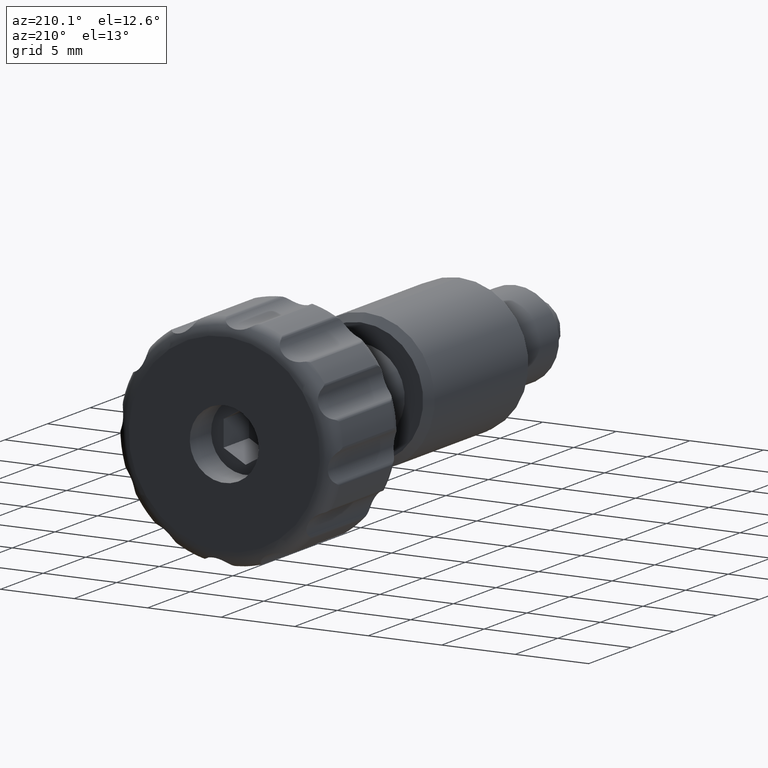
[diagram: clean part render]
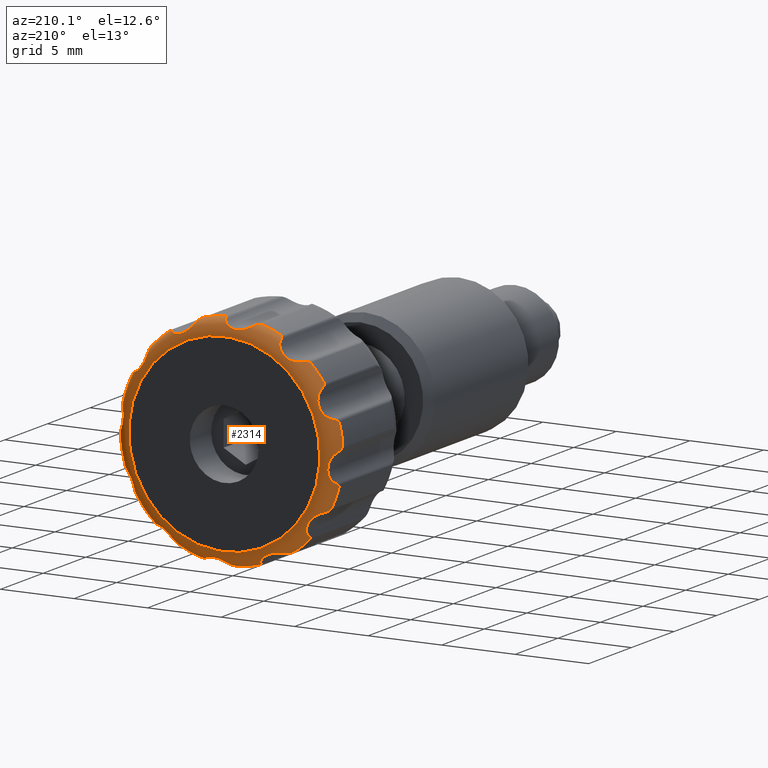
[diagram: same view with one face highlighted and labeled with its STEP entity id]
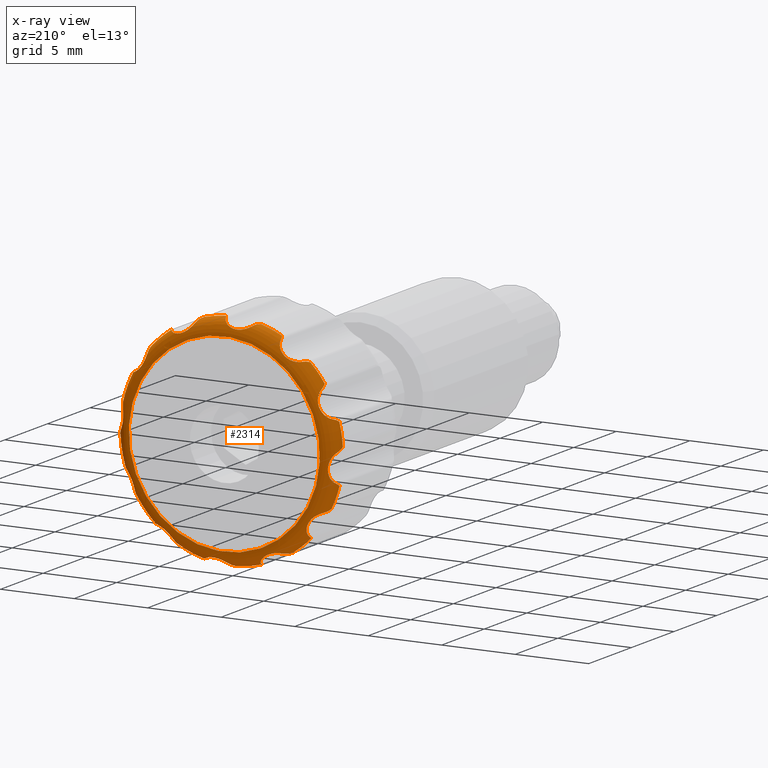
[diagram: x-ray of the same camera — body ghosted, the highlighted face saturated]
A machine part, auxiliary view. The second image highlights one B-rep face of the part: STEP entity #2314.
The next image is the same camera in x-ray: the body ghosted, the highlighted face saturated — about 0% of this face is hidden behind the body in this view.
In plain terms, the highlighted toroidal blend (fillet) surface has major radius 6.5 mm and minor (blend) radius 1 mm.
Its self-contained STEP definition (entity closure, byte-faithful):
#6 = CARTESIAN_POINT ( 'NONE',  ( -5.276409594814913895, 15.00066463725906196, 5.330056452585417048 ) ) ;
#12 = DIRECTION ( 'NONE',  ( 0.1636311210928112214, -4.625929269271425763E-16, 0.9865215943961438416 ) ) ;
#23 = CARTESIAN_POINT ( 'NONE',  ( -6.290628969198816201, 15.43210945243509613, 3.901237475284052625 ) ) ;
#31 = ORIENTED_EDGE ( 'NONE', *, *, #508, .T. ) ;
#42 = CARTESIAN_POINT ( 'NONE',  ( 1.661387541385323852, 15.43210945243703236, -7.213283448194492742 ) ) ;
#44 = CARTESIAN_POINT ( 'NONE',  ( 7.398463230750251363, 15.43210945243500909, -0.2332562751925282563 ) ) ;
#48 = ORIENTED_EDGE ( 'NONE', *, *, #714, .T. ) ;
#55 = CARTESIAN_POINT ( 'NONE',  ( 6.523885244391032678, 15.43210945243504284, 3.497225755466382147 ) ) ;
#57 = CARTESIAN_POINT ( 'NONE',  ( -6.523885244391386173, 15.43210945243505350, -3.497225755466302211 ) ) ;
#59 = CARTESIAN_POINT ( 'NONE',  ( 5.498648544441020469, 15.84309984348018752, 4.413503433307501389 ) ) ;
#61 = ORIENTED_EDGE ( 'NONE', *, *, #1638, .F. ) ;
#65 = CARTESIAN_POINT ( 'NONE',  ( -6.968721042622203932, 15.84309984348009337, -1.072881820713407430 ) ) ;
#67 = CARTESIAN_POINT ( 'NONE',  ( -7.213025690911554655, 15.14656376009504513, 2.056431933795726863 ) ) ;
#70 = EDGE_CURVE ( 'NONE', #2378, #284, #2099, .T. ) ;
#71 = ORIENTED_EDGE ( 'NONE', *, *, #2298, .F. ) ;
#74 = CARTESIAN_POINT ( 'NONE',  ( 6.985445753422791171, 15.86677829977077891, 0.4888876875020571333 ) ) ;
#77 = CARTESIAN_POINT ( 'NONE',  ( -0.4638282471322250355, 15.00066463725909571, -7.485643817145100520 ) ) ;
#80 = ORIENTED_EDGE ( 'NONE', *, *, #1782, .F. ) ;
#83 = CARTESIAN_POINT ( 'NONE',  ( 1.072881820713518009, 15.84309984348018752, -6.968721042622052941 ) ) ;
#85 = CIRCLE ( 'NONE', #1650, 7.500000000000096811 ) ;
#86 = CARTESIAN_POINT ( 'NONE',  ( -7.274879453377575800, 15.14656376009400596, -1.825590549633256066 ) ) ;
#88 = CARTESIAN_POINT ( 'NONE',  ( 6.406717666651647214, 15.58442692549904329, 3.531709327202635862 ) ) ;
#95 = ORIENTED_EDGE ( 'NONE', *, *, #2531, .T. ) ;
#96 = DIRECTION ( 'NONE',  ( -3.260545687903909196E-16, -1.000000000000000000, -3.253773888833970700E-16 ) ) ;
#97 = CARTESIAN_POINT ( 'NONE',  ( 4.076935432798023839, 15.14570152745332088, 6.295646988387678888 ) ) ;
#114 = CARTESIAN_POINT ( 'NONE',  ( 2.056431933794646838, 15.14656376009553362, 7.213025690911712751 ) ) ;
#116 = AXIS2_PLACEMENT_3D ( 'NONE', #2200, #1193, #1574 ) ;
#117 = CARTESIAN_POINT ( 'NONE',  ( 1.904476523588883419, 15.00066463725904775, -7.254169088951477384 ) ) ;
#129 = CARTESIAN_POINT ( 'NONE',  ( 5.330056452585346882, 15.00066463725898558, 5.276409594814825965 ) ) ;
#131 = CARTESIAN_POINT ( 'NONE',  ( 7.274879453377174343, 15.14656376009432392, 1.825590549633888449 ) ) ;
#134 = VERTEX_POINT ( 'NONE', #614 ) ;
#137 = EDGE_CURVE ( 'NONE', #391, #470, #1026, .T. ) ;
#139 = VERTEX_POINT ( 'NONE', #223 ) ;
#143 = CARTESIAN_POINT ( 'NONE',  ( -5.416192940141627332, 15.43210945243703947, -5.045445540467934364 ) ) ;
#156 = CARTESIAN_POINT ( 'NONE',  ( -0.2983484731699010961, 15.84355434146787722, 7.043879788591716817 ) ) ;
#159 = CARTESIAN_POINT ( 'NONE',  ( 7.183431533296480431, 15.51386028369654468, 1.616803499841392711 ) ) ;
#164 = CARTESIAN_POINT ( 'NONE',  ( 5.218447519581363103, 15.14656376009516592, -5.387435141276106343 ) ) ;
#169 = VERTEX_POINT ( 'NONE', #1267 ) ;
#170 = EDGE_CURVE ( 'NONE', #645, #2070, #2034, .T. ) ;
#173 = B_SPLINE_CURVE_WITH_KNOTS ( 'NONE', 3,
 ( #692, #1070, #220, #2492 ),
 .UNSPECIFIED., .F., .F.,
 ( 4, 4 ),
 ( 6.753317704724355309E-16, 0.0004984791478706677732 ),
 .UNSPECIFIED. ) ;
#180 = EDGE_CURVE ( 'NONE', #2317, #2317, #1389, .T. ) ;
#184 = CARTESIAN_POINT ( 'NONE',  ( -3.849776719508273715, 15.51327117412738232, -6.276869519805928554 ) ) ;
#186 = CARTESIAN_POINT ( 'NONE',  ( 0.2984443754994117182, 15.29172059110263859, 7.463581818770409271 ) ) ;
#189 = CARTESIAN_POINT ( 'NONE',  ( -7.398463230750547126, 15.43210945243508547, 0.2332562751925580657 ) ) ;
#191 = CARTESIAN_POINT ( 'NONE',  ( -4.991908670438493623, 15.51386028369643100, 5.412632444260299103 ) ) ;
#192 = DIRECTION ( 'NONE',  ( 0.1636311210928883542, -4.625929269271425763E-16, 0.9865215943961310741 ) ) ;
#197 = CARTESIAN_POINT ( 'NONE',  ( 2.167837907726568591, 15.43210945243693466, 7.077580481526962508 ) ) ;
#198 = CARTESIAN_POINT ( 'NONE',  ( -6.250843585763703913, 15.00066463725909571, 4.144508953581986788 ) ) ;
#200 = EDGE_CURVE ( 'NONE', #211, #1772, #449, .T. ) ;
#206 = CARTESIAN_POINT ( 'NONE',  ( 6.523885244391032678, 15.43210945243504284, 3.497225755466382147 ) ) ;
#210 = EDGE_CURVE ( 'NONE', #139, #1002, #2327, .T. ) ;
#211 = VERTEX_POINT ( 'NONE', #280 ) ;
#218 = B_SPLINE_CURVE_WITH_KNOTS ( 'NONE', 3,
 ( #497, #1720, #1320, #1926 ),
 .UNSPECIFIED., .F., .F.,
 ( 4, 4 ),
 ( 6.510104561652054582E-16, 0.0004984791478706852288 ),
 .UNSPECIFIED. ) ;
#220 = CARTESIAN_POINT ( 'NONE',  ( 6.295646988388402754, 15.14570152745257836, -4.076935432796839009 ) ) ;
#221 = DIRECTION ( 'NONE',  ( -3.260545687903909196E-16, -1.000000000000000000, -3.253773888833970700E-16 ) ) ;
#223 = CARTESIAN_POINT ( 'NONE',  ( -7.254169088951682554, 15.00066463725908683, -1.904476523588947146 ) ) ;
#229 = EDGE_CURVE ( 'NONE', #1249, #586, #1279, .T. ) ;
#230 = CARTESIAN_POINT ( 'NONE',  ( -7.213283448194684588, 15.43210945243706966, -1.661387541385329181 ) ) ;
#231 = CIRCLE ( 'NONE', #1936, 7.500000000000096811 ) ;
#237 = CARTESIAN_POINT ( 'NONE',  ( -0.01993354387748488832, 15.69991370668020281, -7.219067963954438838 ) ) ;
#241 = ORIENTED_EDGE ( 'NONE', *, *, #70, .T. ) ;
#242 = DIRECTION ( 'NONE',  ( -3.260545687903909196E-16, -1.000000000000000000, -3.253773888833970700E-16 ) ) ;
#246 = DIRECTION ( 'NONE',  ( -3.260545687903909196E-16, -1.000000000000000000, -3.253773888833970700E-16 ) ) ;
#248 = EDGE_CURVE ( 'NONE', #1455, #2107, #1974, .T. ) ;
#253 = B_SPLINE_CURVE_WITH_KNOTS ( 'NONE', 3,
 ( #724, #131, #1555, #1523 ),
 .UNSPECIFIED., .F., .F.,
 ( 4, 4 ),
 ( -6.324575239426343068E-06, 0.0004951179910539831247 ),
 .UNSPECIFIED. ) ;
#259 = CARTESIAN_POINT ( 'NONE',  ( 3.663953904273666571E-15, 15.00066463725904775, -1.938811662738744079E-14 ) ) ;
#266 = ORIENTED_EDGE ( 'NONE', *, *, #2387, .F. ) ;
#269 = DIRECTION ( 'NONE',  ( 3.260545687903909196E-16, 1.000000000000000000, 3.253773888833970700E-16 ) ) ;
#271 = CARTESIAN_POINT ( 'NONE',  ( 6.523885244391032678, 15.43210945243504284, 3.497225755466382147 ) ) ;
#272 = CARTESIAN_POINT ( 'NONE',  ( 7.219067963954477918, 15.69991370668014774, -0.01993354387744661685 ) ) ;
#280 = CARTESIAN_POINT ( 'NONE',  ( 7.254169088951471167, 15.00066463725901045, 1.904476523588913395 ) ) ;
#281 = EDGE_CURVE ( 'NONE', #828, #1161, #1372, .T. ) ;
#284 = VERTEX_POINT ( 'NONE', #1748 ) ;
#286 = CARTESIAN_POINT ( 'NONE',  ( 7.234532976174245178, 15.00066463725904420, -1.977759494136626550 ) ) ;
#288 = ORIENTED_EDGE ( 'NONE', *, *, #300, .T. ) ;
#291 = AXIS2_PLACEMENT_3D ( 'NONE', #259, #480, #1716 ) ;
#300 = EDGE_CURVE ( 'NONE', #1624, #1838, #2460, .T. ) ;
#303 = EDGE_CURVE ( 'NONE', #1235, #1333, #2261, .T. ) ;
#304 = CARTESIAN_POINT ( 'NONE',  ( -5.416192940141627332, 15.43210945243703947, -5.045445540467934364 ) ) ;
#308 = CARTESIAN_POINT ( 'NONE',  ( -1.661387541385480171, 15.43210945243696841, 7.213283448194624192 ) ) ;
#312 = ORIENTED_EDGE ( 'NONE', *, *, #303, .F. ) ;
#313 = CARTESIAN_POINT ( 'NONE',  ( 1.661387541385323852, 15.43210945243703236, -7.213283448194492742 ) ) ;
#317 = ORIENTED_EDGE ( 'NONE', *, *, #2398, .F. ) ;
#319 = CARTESIAN_POINT ( 'NONE',  ( 3.663953904273666571E-15, 15.00066463725904775, -1.938811662738744079E-14 ) ) ;
#322 = ORIENTED_EDGE ( 'NONE', *, *, #1475, .F. ) ;
#331 = ORIENTED_EDGE ( 'NONE', *, *, #1785, .F. ) ;
#333 = CARTESIAN_POINT ( 'NONE',  ( 3.511040100637980998, 15.51327117412743029, -6.472439197895040408 ) ) ;
#337 = CARTESIAN_POINT ( 'NONE',  ( -5.137376219899620899, 15.29173125218629181, 5.422306835207083786 ) ) ;
#347 = CARTESIAN_POINT ( 'NONE',  ( 4.680363824177866228, 15.74388756368711562, -5.433742480283412668 ) ) ;
#351 = CARTESIAN_POINT ( 'NONE',  ( -7.029435944101659395, 15.51386028369650383, 2.191522862858010345 ) ) ;
#356 = CARTESIAN_POINT ( 'NONE',  ( -0.8749063602448139410, 15.86660133686052276, 6.947970460800132919 ) ) ;
#358 = CARTESIAN_POINT ( 'NONE',  ( -3.916112033685797300, 15.86677829977067944, 5.805129635471304006 ) ) ;
#363 = CARTESIAN_POINT ( 'NONE',  ( 3.341134863563276269, 15.00066463725908328, -6.714671832895654724 ) ) ;
#368 = CARTESIAN_POINT ( 'NONE',  ( -3.780317251241356313, 15.84355434146781860, 5.951004601539315431 ) ) ;
#370 = CARTESIAN_POINT ( 'NONE',  ( 7.077580481526844380, 15.43210945243702881, -2.167837907726558377 ) ) ;
#372 = AXIS2_PLACEMENT_3D ( 'NONE', #1611, #1035, #12 ) ;
#373 = CARTESIAN_POINT ( 'NONE',  ( 2.555217609314616389, 15.84309984348014311, 6.571530365154686137 ) ) ;
#383 = CARTESIAN_POINT ( 'NONE',  ( 7.029435944101648737, 15.51386028369661396, -2.191522862857869569 ) ) ;
#384 = CARTESIAN_POINT ( 'NONE',  ( 2.191522862857908649, 15.51386028369649139, 7.029435944101686928 ) ) ;
#391 = VERTEX_POINT ( 'NONE', #2411 ) ;
#393 = CARTESIAN_POINT ( 'NONE',  ( -6.294017322973343376, 15.86677829977076115, 3.069333719737160404 ) ) ;
#395 = CARTESIAN_POINT ( 'NONE',  ( -3.990251320184297512, 15.29172059110272386, -6.314429270529032578 ) ) ;
#401 = DIRECTION ( 'NONE',  ( 0.1636311210927770543, -4.625929269271425763E-16, 0.9865215943961495038 ) ) ;
#404 = B_SPLINE_CURVE_WITH_KNOTS ( 'NONE', 3,
 ( #6, #2160, #337, #963 ),
 .UNSPECIFIED., .F., .F.,
 ( 4, 4 ),
 ( -6.324575239406439488E-06, 0.0004951179910538869560 ),
 .UNSPECIFIED. ) ;
#407 = CARTESIAN_POINT ( 'NONE',  ( -3.631940801773888783, 15.74416509878305170, 6.183539981799855312 ) ) ;
#408 = CARTESIAN_POINT ( 'NONE',  ( -6.237122990277176093, 15.74416509878316361, 3.539132308668551552 ) ) ;
#414 = CIRCLE ( 'NONE', #372, 7.500000000000096811 ) ;
#420 = ORIENTED_EDGE ( 'NONE', *, *, #2429, .T. ) ;
#423 = DIRECTION ( 'NONE',  ( -3.260545687903909196E-16, -1.000000000000000000, -3.253773888833970700E-16 ) ) ;
#425 = CARTESIAN_POINT ( 'NONE',  ( -4.144508953582038302, 15.00066463725906551, -6.250843585763460553 ) ) ;
#438 = CARTESIAN_POINT ( 'NONE',  ( 5.805129635471069527, 15.86677829977084819, 3.916112033685618776 ) ) ;
#441 = B_SPLINE_CURVE_WITH_KNOTS ( 'NONE', 3,
 ( #577, #164, #565, #1757 ),
 .UNSPECIFIED., .F., .F.,
 ( 4, 4 ),
 ( -6.324575239415471401E-06, 0.0004951179910540224813 ),
 .UNSPECIFIED. ) ;
#449 = CIRCLE ( 'NONE', #1100, 7.500000000000096811 ) ;
#460 = ORIENTED_EDGE ( 'NONE', *, *, #1536, .F. ) ;
#462 = CARTESIAN_POINT ( 'NONE',  ( 1.616803499841496627, 15.51386028369659975, -7.183431533296436022 ) ) ;
#465 = CARTESIAN_POINT ( 'NONE',  ( 4.144508953581845567, 15.00066463725898558, 6.250843585763510291 ) ) ;
#468 = CARTESIAN_POINT ( 'NONE',  ( 5.579665743674244283, 15.86660133686063467, 4.231676364304541416 ) ) ;
#469 = CARTESIAN_POINT ( 'NONE',  ( 7.398463230750251363, 15.43210945243500909, -0.2332562751925282563 ) ) ;
#470 = VERTEX_POINT ( 'NONE', #2216 ) ;
#472 = B_SPLINE_CURVE_WITH_KNOTS ( 'NONE', 3,
 ( #55, #1482, #705, #500 ),
 .UNSPECIFIED., .F., .F.,
 ( 4, 4 ),
 ( 5.961836001895484834E-16, 0.0004984791478706576901 ),
 .UNSPECIFIED. ) ;
#477 = CARTESIAN_POINT ( 'NONE',  ( -5.498648544441278929, 15.84309984348012179, -4.413503433307390367 ) ) ;
#480 = DIRECTION ( 'NONE',  ( -3.260545687903909196E-16, -1.000000000000000000, -3.253773888833970700E-16 ) ) ;
#483 = EDGE_CURVE ( 'NONE', #1766, #1002, #2390, .T. ) ;
#485 = CARTESIAN_POINT ( 'NONE',  ( 1.661387541385323852, 15.43210945243703236, -7.213283448194492742 ) ) ;
#497 = CARTESIAN_POINT ( 'NONE',  ( -6.290628969198816201, 15.43210945243509613, 3.901237475284052625 ) ) ;
#500 = CARTESIAN_POINT ( 'NONE',  ( 6.714671832895670711, 15.00066463725904420, 3.341134863563242074 ) ) ;
#502 = CARTESIAN_POINT ( 'NONE',  ( -5.412632444260307096, 15.51386028369655179, -4.991908670438427897 ) ) ;
#505 = DIRECTION ( 'NONE',  ( 0.1636311210927648141, -4.625929269271425763E-16, 0.9865215943961515022 ) ) ;
#508 = EDGE_CURVE ( 'NONE', #2577, #1153, #1308, .T. ) ;
#516 = CARTESIAN_POINT ( 'NONE',  ( -3.531709327202881887, 15.58442692549880171, 6.406717666651700505 ) ) ;
#517 = CARTESIAN_POINT ( 'NONE',  ( 3.341134863563276269, 15.00066463725908328, -6.714671832895654724 ) ) ;
#524 = CARTESIAN_POINT ( 'NONE',  ( -0.3829061601988067443, 15.14570152745377740, -7.490657941601649661 ) ) ;
#526 = CARTESIAN_POINT ( 'NONE',  ( -5.330056452585523630, 15.00066463725905486, -5.276409594814808202 ) ) ;
#533 = B_SPLINE_CURVE_WITH_KNOTS ( 'NONE', 3,
 ( #271, #2483, #88, #2497, #1878, #685, #438, #468, #59, #697, #1502, #870, #669, #1512 ),
 .UNSPECIFIED., .F., .F.,
 ( 4, 2, 2, 2, 2, 2, 4 ),
 ( 0.0004549188434785436403, 0.0007454011220209986934, 0.001035883400563450494, 0.001616847957648355179, 0.002197812514733259864, 0.002488294793275710147, 0.002778777071818161297 ),
 .UNSPECIFIED. ) ;
#539 = CIRCLE ( 'NONE', #2472, 7.500000000000096811 ) ;
#540 = B_SPLINE_CURVE_WITH_KNOTS ( 'NONE', 3,
 ( #840, #1647, #2193, #2039 ),
 .UNSPECIFIED., .F., .F.,
 ( 4, 4 ),
 ( 6.351361659544823534E-16, 0.0004984791478706214777 ),
 .UNSPECIFIED. ) ;
#547 = CARTESIAN_POINT ( 'NONE',  ( -1.977759494136644758, 15.00066463725909571, -7.234532976174253172 ) ) ;
#556 = CARTESIAN_POINT ( 'NONE',  ( 5.387435141274509398, 15.14656376009639516, 5.218447519583007121 ) ) ;
#558 = CARTESIAN_POINT ( 'NONE',  ( -3.901237475284061951, 15.43210945243506416, -6.290628969198629683 ) ) ;
#563 = EDGE_CURVE ( 'NONE', #1654, #1467, #218, .T. ) ;
#565 = CARTESIAN_POINT ( 'NONE',  ( 5.137376219899469021, 15.29173125218635576, -5.422306835206872400 ) ) ;
#567 = CARTESIAN_POINT ( 'NONE',  ( -0.2984443754997734288, 15.29172059110283044, -7.463581818770316012 ) ) ;
#577 = CARTESIAN_POINT ( 'NONE',  ( 5.276409594814813531, 15.00066463725904775, -5.330056452585289151 ) ) ;
#586 = VERTEX_POINT ( 'NONE', #304 ) ;
#587 = AXIS2_PLACEMENT_3D ( 'NONE', #1908, #242, #1845 ) ;
#590 = CIRCLE ( 'NONE', #976, 7.500000000000096811 ) ;
#596 = ORIENTED_EDGE ( 'NONE', *, *, #2352, .F. ) ;
#599 = B_SPLINE_CURVE_WITH_KNOTS ( 'NONE', 3,
 ( #23, #1841, #809, #748, #408, #2656, #393, #1561, #1211, #1425, #1014, #625, #351, #1443 ),
 .UNSPECIFIED., .F., .F.,
 ( 4, 2, 2, 2, 2, 2, 4 ),
 ( 0.0004549188434784821660, 0.0007454011220209178119, 0.001035883400563350530, 0.001616847957648220521, 0.002197812514733090729, 0.002488294793275528868, 0.002778777071817970044 ),
 .UNSPECIFIED. ) ;
#601 = CARTESIAN_POINT ( 'NONE',  ( 6.261908829465830273, 15.58442692549897401, -3.782525590593591502 ) ) ;
#614 = CARTESIAN_POINT ( 'NONE',  ( -5.045445540468121770, 15.43210945243698262, 5.416192940141741907 ) ) ;
#618 = CARTESIAN_POINT ( 'NONE',  ( -7.485643817145367862, 15.00066463725908683, 0.4638282471322408007 ) ) ;
#625 = CARTESIAN_POINT ( 'NONE',  ( -6.969682890849202117, 15.58401888878713670, 2.224136671709334490 ) ) ;
#641 = CARTESIAN_POINT ( 'NONE',  ( -3.497225755466415453, 15.43210945243496468, 6.523885244391226301 ) ) ;
#645 = VERTEX_POINT ( 'NONE', #1383 ) ;
#667 = CARTESIAN_POINT ( 'NONE',  ( -5.421486346727431460, 15.69955464054662997, -4.767374085032683340 ) ) ;
#669 = CARTESIAN_POINT ( 'NONE',  ( 5.412632444260079723, 15.51386028369656422, 4.991908670438619744 ) ) ;
#677 = CIRCLE ( 'NONE', #1913, 7.500000000000096811 ) ;
#683 = CARTESIAN_POINT ( 'NONE',  ( -7.213283448194684588, 15.43210945243706966, -1.661387541385329181 ) ) ;
#685 = CARTESIAN_POINT ( 'NONE',  ( 5.951004601539140459, 15.84355434146799269, 3.780317251241123166 ) ) ;
#689 = EDGE_CURVE ( 'NONE', #1766, #1064, #540, .T. ) ;
#690 = CARTESIAN_POINT ( 'NONE',  ( -7.078831945052813879, 15.69955464054659977, -1.417923893618185716 ) ) ;
#692 = CARTESIAN_POINT ( 'NONE',  ( 6.290628969198654552, 15.43210945243501264, -3.901237475283992229 ) ) ;
#697 = CARTESIAN_POINT ( 'NONE',  ( 5.433742480283370035, 15.74388756368708187, 4.680363824177923071 ) ) ;
#705 = CARTESIAN_POINT ( 'NONE',  ( 6.678553148585683275, 15.14570152745325515, 3.413722508803900713 ) ) ;
#707 = CARTESIAN_POINT ( 'NONE',  ( -6.183539981799918372, 15.74416509878314585, -3.631940801773624994 ) ) ;
#709 = CARTESIAN_POINT ( 'NONE',  ( 3.916112033685557936, 15.86677829977087306, -5.805129635471113936 ) ) ;
#710 = CARTESIAN_POINT ( 'NONE',  ( -7.077580481527171230, 15.43210945243704479, 2.167837907726682722 ) ) ;
#714 = EDGE_CURVE ( 'NONE', #1707, #1958, #2599, .T. ) ;
#724 = CARTESIAN_POINT ( 'NONE',  ( 7.254169088951471167, 15.00066463725901045, 1.904476523588913395 ) ) ;
#726 = B_SPLINE_CURVE_WITH_KNOTS ( 'NONE', 3,
 ( #2133, #2350, #516, #1534, #407, #368, #358, #1984, #2461, #1424, #2234, #823, #191, #1029 ),
 .UNSPECIFIED., .F., .F.,
 ( 4, 2, 2, 2, 2, 2, 4 ),
 ( 0.0004549188434785078616, 0.0007454011220210113786, 0.001035883400563514896, 0.001616847957648520412, 0.002197812514733526144, 0.002488294793276028902, 0.002778777071818528625 ),
 .UNSPECIFIED. ) ;
#741 = CARTESIAN_POINT ( 'NONE',  ( -1.558682586235849765, 15.58401888878711894, 7.147990775651813067 ) ) ;
#742 = ORIENTED_EDGE ( 'NONE', *, *, #2247, .F. ) ;
#743 = CARTESIAN_POINT ( 'NONE',  ( -7.234532976174453900, 15.00066463725906196, 1.977759494136719365 ) ) ;
#748 = CARTESIAN_POINT ( 'NONE',  ( -6.241929476492297901, 15.69991370668011577, 3.626796937362523732 ) ) ;
#778 = CARTESIAN_POINT ( 'NONE',  ( -6.612873646028643471, 15.29172059110274340, -3.473330498586049586 ) ) ;
#793 = CARTESIAN_POINT ( 'NONE',  ( 6.714671832895670711, 15.00066463725904420, 3.341134863563242074 ) ) ;
#794 = CARTESIAN_POINT ( 'NONE',  ( -2.127167356453643521, 15.29173125218635754, -7.160251732834498561 ) ) ;
#800 = CARTESIAN_POINT ( 'NONE',  ( -2.191522862857897103, 15.51386028369665304, -7.029435944101634526 ) ) ;
#807 = VERTEX_POINT ( 'NONE', #1887 ) ;
#809 = CARTESIAN_POINT ( 'NONE',  ( -6.261908829465840931, 15.58442692549893671, 3.782525590593578624 ) ) ;
#813 = CARTESIAN_POINT ( 'NONE',  ( 2.365577113459213621, 15.74388756368701259, 6.770185210833492562 ) ) ;
#815 = CARTESIAN_POINT ( 'NONE',  ( -2.311457860019931587, 15.69955464054671346, -6.839410240345594971 ) ) ;
#823 = CARTESIAN_POINT ( 'NONE',  ( -4.923854103942538529, 15.58401888878705321, 5.411000304613492240 ) ) ;
#826 = CARTESIAN_POINT ( 'NONE',  ( 6.276869519805981845, 15.51327117412734324, -3.849776719508221756 ) ) ;
#827 = B_SPLINE_CURVE_WITH_KNOTS ( 'NONE', 3,
 ( #1493, #114, #1935, #1505 ),
 .UNSPECIFIED., .F., .F.,
 ( 4, 4 ),
 ( -6.324575239427138432E-06, 0.0004951179910539904973 ),
 .UNSPECIFIED. ) ;
#828 = VERTEX_POINT ( 'NONE', #2306 ) ;
#840 = CARTESIAN_POINT ( 'NONE',  ( -7.398463230750547126, 15.43210945243508547, 0.2332562751925580657 ) ) ;
#843 = ORIENTED_EDGE ( 'NONE', *, *, #1931, .T. ) ;
#845 = CARTESIAN_POINT ( 'NONE',  ( -2.224136671709243451, 15.58401888878730723, -6.969682890849131951 ) ) ;
#847 = EDGE_CURVE ( 'NONE', #1235, #1518, #1058, .T. ) ;
#850 = EDGE_CURVE ( 'NONE', #807, #1149, #441, .T. ) ;
#856 = CARTESIAN_POINT ( 'NONE',  ( 7.463581818770239629, 15.29172059110270254, -0.2984443754995288467 ) ) ;
#865 = CARTESIAN_POINT ( 'NONE',  ( 1.558682586235807799, 15.58401888878726460, -7.147990775651754447 ) ) ;
#868 = CARTESIAN_POINT ( 'NONE',  ( -7.264543576353112542, 15.29173125218636820, -1.737944897627528018 ) ) ;
#870 = CARTESIAN_POINT ( 'NONE',  ( 5.411000304613261314, 15.58401888878724684, 4.923854103942589155 ) ) ;
#876 = CARTESIAN_POINT ( 'NONE',  ( 1.825590549636449289, 15.14656376009585337, -7.274879453376475347 ) ) ;
#880 = CARTESIAN_POINT ( 'NONE',  ( 6.250843585763480093, 15.00066463725901400, -4.144508953581806487 ) ) ;
#882 = CARTESIAN_POINT ( 'NONE',  ( 7.490657941601774006, 15.14570152745260678, -0.3829061601968643536 ) ) ;
#890 = AXIS2_PLACEMENT_3D ( 'NONE', #2379, #221, #192 ) ;
#891 = EDGE_CURVE ( 'NONE', #906, #1758, #2290, .T. ) ;
#892 = CARTESIAN_POINT ( 'NONE',  ( 1.737944897627507368, 15.29173125218633444, -7.264543576352931353 ) ) ;
#893 = TOROIDAL_SURFACE ( 'NONE', #1321, 6.500000000000000000, 1.000000000000000000 ) ;
#894 = CARTESIAN_POINT ( 'NONE',  ( 1.417923893618328712, 15.69955464054669569, -7.078831945052695751 ) ) ;
#895 = CARTESIAN_POINT ( 'NONE',  ( -2.167837907726742674, 15.43210945243708032, -7.077580481526933198 ) ) ;
#906 = VERTEX_POINT ( 'NONE', #1409 ) ;
#911 = CARTESIAN_POINT ( 'NONE',  ( -5.330056452585523630, 15.00066463725905486, -5.276409594814808202 ) ) ;
#912 = CARTESIAN_POINT ( 'NONE',  ( 3.990251320184337480, 15.29172059110269366, 6.314429270528999716 ) ) ;
#921 = ORIENTED_EDGE ( 'NONE', *, *, #210, .T. ) ;
#925 = CARTESIAN_POINT ( 'NONE',  ( 3.663953904273666571E-15, 15.00066463725904775, -1.938811662738744079E-14 ) ) ;
#933 = ORIENTED_EDGE ( 'NONE', *, *, #1839, .T. ) ;
#959 = CARTESIAN_POINT ( 'NONE',  ( 7.160251732834398197, 15.29173125218633267, -2.127167356453455227 ) ) ;
#963 = CARTESIAN_POINT ( 'NONE',  ( -5.045445540468121770, 15.43210945243698262, 5.416192940141741907 ) ) ;
#971 = CARTESIAN_POINT ( 'NONE',  ( -1.616803499841516167, 15.51386028369645942, 7.183431533296474214 ) ) ;
#976 = AXIS2_PLACEMENT_3D ( 'NONE', #2339, #1715, #505 ) ;
#979 = CARTESIAN_POINT ( 'NONE',  ( 0.4638282471321208411, 15.00066463725895005, 7.485643817145195555 ) ) ;
#982 = B_SPLINE_CURVE_WITH_KNOTS ( 'NONE', 3,
 ( #1363, #333, #1727, #1969, #1763, #1347, #709, #2581, #2170, #347, #1921, #1544, #1959, #2153 ),
 .UNSPECIFIED., .F., .F.,
 ( 4, 2, 2, 2, 2, 2, 4 ),
 ( 0.0004549188434784893218, 0.0007454011220209108730, 0.001035883400563332533, 0.001616847957648181056, 0.002197812514733029580, 0.002488294793275454709, 0.002778777071817880272 ),
 .UNSPECIFIED. ) ;
#989 = EDGE_CURVE ( 'NONE', #1577, #1333, #2356, .T. ) ;
#995 = EDGE_CURVE ( 'NONE', #1577, #1336, #539, .T. ) ;
#1002 = VERTEX_POINT ( 'NONE', #230 ) ;
#1004 = CARTESIAN_POINT ( 'NONE',  ( -3.782525590593648790, 15.58442692549900421, -6.261908829465776094 ) ) ;
#1013 = CARTESIAN_POINT ( 'NONE',  ( -6.523885244391386173, 15.43210945243505350, -3.497225755466302211 ) ) ;
#1014 = CARTESIAN_POINT ( 'NONE',  ( -6.839410240345666914, 15.69955464054658556, 2.311457860020025290 ) ) ;
#1015 = CIRCLE ( 'NONE', #1355, 7.500000000000095923 ) ;
#1026 = B_SPLINE_CURVE_WITH_KNOTS ( 'NONE', 3,
 ( #2436, #826, #601, #2237, #1032, #2415, #1829, #2052, #1446, #1648, #1633, #2464, #383, #1416 ),
 .UNSPECIFIED., .F., .F.,
 ( 4, 2, 2, 2, 2, 2, 4 ),
 ( 0.0004549188434784848765, 0.0007454011220209268108, 0.001035883400563368745, 0.001616847957648251313, 0.002197812514733134097, 0.002488294793275575706, 0.002778777071818017315 ),
 .UNSPECIFIED. ) ;
#1029 = CARTESIAN_POINT ( 'NONE',  ( -5.045445540468121770, 15.43210945243698262, 5.416192940141741907 ) ) ;
#1032 = CARTESIAN_POINT ( 'NONE',  ( 6.237122990277140566, 15.74416509878321868, -3.539132308668543114 ) ) ;
#1033 = ORIENTED_EDGE ( 'NONE', *, *, #689, .T. ) ;
#1034 = CARTESIAN_POINT ( 'NONE',  ( 3.626796937362572582, 15.69991370668012998, 6.241929476492244611 ) ) ;
#1035 = DIRECTION ( 'NONE',  ( -3.260545687903909196E-16, -1.000000000000000000, -3.253773888833970700E-16 ) ) ;
#1051 = CARTESIAN_POINT ( 'NONE',  ( -7.147990775651859252, 15.58401888878714558, -1.558682586235668355 ) ) ;
#1053 = CARTESIAN_POINT ( 'NONE',  ( 0.2983484731697413350, 15.84355434146799624, -7.043879788591602242 ) ) ;
#1056 = CARTESIAN_POINT ( 'NONE',  ( 3.663953904273666571E-15, 15.00066463725904775, -1.938811662738744079E-14 ) ) ;
#1058 = B_SPLINE_CURVE_WITH_KNOTS ( 'NONE', 3,
 ( #2214, #186, #2015, #979 ),
 .UNSPECIFIED., .F., .F.,
 ( 4, 4 ),
 ( 6.670682269806783058E-16, 0.0004984791478706342713 ),
 .UNSPECIFIED. ) ;
#1063 = CIRCLE ( 'NONE', #587, 7.500000000000097700 ) ;
#1064 = VERTEX_POINT ( 'NONE', #618 ) ;
#1070 = CARTESIAN_POINT ( 'NONE',  ( 6.314429270528983729, 15.29172059110271142, -3.990251320184231787 ) ) ;
#1073 = CARTESIAN_POINT ( 'NONE',  ( -6.406717666651800869, 15.58442692549889763, -3.531709327202621207 ) ) ;
#1083 = CARTESIAN_POINT ( 'NONE',  ( 0.05358300847728656585, 15.74416509878325598, -7.171073110442194753 ) ) ;
#1090 = CARTESIAN_POINT ( 'NONE',  ( 7.171073110442242715, 15.74416509878319026, 0.05358300847731777700 ) ) ;
#1099 = CARTESIAN_POINT ( 'NONE',  ( -5.433742480283614285, 15.74388756368701259, -4.680363824177812937 ) ) ;
#1100 = AXIS2_PLACEMENT_3D ( 'NONE', #1056, #1307, #2526 ) ;
#1101 = ORIENTED_EDGE ( 'NONE', *, *, #137, .F. ) ;
#1123 = CARTESIAN_POINT ( 'NONE',  ( 1.977759494136643870, 15.00066463725895005, 7.234532976174320673 ) ) ;
#1127 = CARTESIAN_POINT ( 'NONE',  ( 3.663953904273666571E-15, 15.00066463725904775, -1.938811662738744079E-14 ) ) ;
#1128 = CARTESIAN_POINT ( 'NONE',  ( 5.416192940141586476, 15.43210945243696841, 5.045445540467915713 ) ) ;
#1130 = FACE_OUTER_BOUND ( 'NONE', #2345, .T. ) ;
#1133 = VERTEX_POINT ( 'NONE', #1123 ) ;
#1138 = CARTESIAN_POINT ( 'NONE',  ( -0.4888876875021960222, 15.86677829977074161, 6.985445753422840021 ) ) ;
#1147 = DIRECTION ( 'NONE',  ( 0.1636311210928392545, -4.625929269271425763E-16, 0.9865215943961392897 ) ) ;
#1149 = VERTEX_POINT ( 'NONE', #1881 ) ;
#1153 = VERTEX_POINT ( 'NONE', #313 ) ;
#1161 = VERTEX_POINT ( 'NONE', #77 ) ;
#1162 = EDGE_CURVE ( 'NONE', #1133, #2311, #827, .T. ) ;
#1163 = CARTESIAN_POINT ( 'NONE',  ( -5.387435141276320394, 15.14656376009515348, -5.218447519581332017 ) ) ;
#1164 = CARTESIAN_POINT ( 'NONE',  ( 7.045940937637149126, 15.74388756368701792, 1.336442730549913582 ) ) ;
#1169 = B_SPLINE_CURVE_WITH_KNOTS ( 'NONE', 3,
 ( #1013, #778, #2433, #2655 ),
 .UNSPECIFIED., .F., .F.,
 ( 4, 4 ),
 ( 7.038029903794197823E-16, 0.0004984791478706709173 ),
 .UNSPECIFIED. ) ;
#1175 = CARTESIAN_POINT ( 'NONE',  ( 7.213283448194512282, 15.43210945243699328, 1.661387541385304312 ) ) ;
#1179 = B_SPLINE_CURVE_WITH_KNOTS ( 'NONE', 3,
 ( #2014, #184, #1004, #1804, #1243, #2648, #1821, #1449, #2663, #2055, #815, #845, #800, #1623 ),
 .UNSPECIFIED., .F., .F.,
 ( 4, 2, 2, 2, 2, 2, 4 ),
 ( 0.0004549188434785053680, 0.0007454011220209610716, 0.001035883400563416667, 0.001616847957648332845, 0.002197812514733249022, 0.002488294793275704943, 0.002778777071818161297 ),
 .UNSPECIFIED. ) ;
#1192 = ORIENTED_EDGE ( 'NONE', *, *, #180, .F. ) ;
#1193 = DIRECTION ( 'NONE',  ( -3.260545687903909196E-16, -1.000000000000000000, -3.253773888833970700E-16 ) ) ;
#1200 = CARTESIAN_POINT ( 'NONE',  ( -2.056431933793594791, 15.14656376009630279, -7.213025690911931243 ) ) ;
#1202 = VERTEX_POINT ( 'NONE', #286 ) ;
#1205 = B_SPLINE_CURVE_WITH_KNOTS ( 'NONE', 3,
 ( #526, #1163, #2570, #143 ),
 .UNSPECIFIED., .F., .F.,
 ( 4, 4 ),
 ( -6.324575239392167830E-06, 0.0004951179910539782458 ),
 .UNSPECIFIED. ) ;
#1211 = CARTESIAN_POINT ( 'NONE',  ( -6.571530365154732323, 15.84309984348009337, 2.555217609314682115 ) ) ;
#1214 = CARTESIAN_POINT ( 'NONE',  ( 4.144508953581845567, 15.00066463725898558, 6.250843585763510291 ) ) ;
#1235 = VERTEX_POINT ( 'NONE', #1582 ) ;
#1242 = B_SPLINE_CURVE_WITH_KNOTS ( 'NONE', 3,
 ( #469, #1287, #2092, #272, #1090, #1891, #74, #1691, #2620, #1164, #2144, #2376, #159, #1175 ),
 .UNSPECIFIED., .F., .F.,
 ( 4, 2, 2, 2, 2, 2, 4 ),
 ( 0.0004549188434784961522, 0.0007454011220209084878, 0.001035883400563323859, 0.001616847957648150915, 0.002197812514732977972, 0.002488294793275393560, 0.002778777071817808714 ),
 .UNSPECIFIED. ) ;
#1243 = CARTESIAN_POINT ( 'NONE',  ( -3.539132308668593296, 15.74416509878323645, -6.237122990277085499 ) ) ;
#1249 = VERTEX_POINT ( 'NONE', #1976 ) ;
#1260 = CARTESIAN_POINT ( 'NONE',  ( -1.825590549635556448, 15.14656376009516947, 7.274879453376904337 ) ) ;
#1261 = AXIS2_PLACEMENT_3D ( 'NONE', #2089, #269, #1510 ) ;
#1263 = EDGE_CURVE ( 'NONE', #2053, #284, #2420, .T. ) ;
#1264 = CARTESIAN_POINT ( 'NONE',  ( 7.213283448194512282, 15.43210945243699328, 1.661387541385304312 ) ) ;
#1267 = CARTESIAN_POINT ( 'NONE',  ( -3.497225755466415453, 15.43210945243496468, 6.523885244391226301 ) ) ;
#1272 = CARTESIAN_POINT ( 'NONE',  ( 5.330056452585346882, 15.00066463725898558, 5.276409594814825965 ) ) ;
#1279 = B_SPLINE_CURVE_WITH_KNOTS ( 'NONE', 3,
 ( #57, #2540, #1073, #1298, #707, #1522, #1674, #2334, #477, #1099, #667, #2319, #502, #1904 ),
 .UNSPECIFIED., .F., .F.,
 ( 4, 2, 2, 2, 2, 2, 4 ),
 ( 0.0004549188434784319675, 0.0007454011220208950437, 0.001035883400563358120, 0.001616847957648281670, 0.002197812514733205221, 0.002488294793275667213, 0.002778777071818125735 ),
 .UNSPECIFIED. ) ;
#1287 = CARTESIAN_POINT ( 'NONE',  ( 7.360816820146307116, 15.51327117412735568, -0.1955696780890809616 ) ) ;
#1293 = CARTESIAN_POINT ( 'NONE',  ( -7.360816820146332873, 15.51327117412730416, 0.1955696780890236464 ) ) ;
#1298 = CARTESIAN_POINT ( 'NONE',  ( -6.261863020369807131, 15.69991370668008557, -3.592271026591873806 ) ) ;
#1301 = ORIENTED_EDGE ( 'NONE', *, *, #989, .T. ) ;
#1307 = DIRECTION ( 'NONE',  ( -3.260545687903909196E-16, -1.000000000000000000, -3.253773888833970700E-16 ) ) ;
#1308 = B_SPLINE_CURVE_WITH_KNOTS ( 'NONE', 3,
 ( #2315, #876, #892, #485 ),
 .UNSPECIFIED., .F., .F.,
 ( 4, 4 ),
 ( -6.324575239401162473E-06, 0.0004951179910539788964 ),
 .UNSPECIFIED. ) ;
#1316 = ORIENTED_EDGE ( 'NONE', *, *, #281, .T. ) ;
#1320 = CARTESIAN_POINT ( 'NONE',  ( -6.295646988388363674, 15.14570152745294962, 4.076935432797395009 ) ) ;
#1321 = AXIS2_PLACEMENT_3D ( 'NONE', #319, #1750, #2361 ) ;
#1333 = VERTEX_POINT ( 'NONE', #2612 ) ;
#1336 = VERTEX_POINT ( 'NONE', #2585 ) ;
#1338 = CARTESIAN_POINT ( 'NONE',  ( -7.398463230750547126, 15.43210945243508547, 0.2332562751925580657 ) ) ;
#1343 = ORIENTED_EDGE ( 'NONE', *, *, #995, .F. ) ;
#1347 = CARTESIAN_POINT ( 'NONE',  ( 3.780317251241054777, 15.84355434146800867, -5.951004601539196415 ) ) ;
#1355 = AXIS2_PLACEMENT_3D ( 'NONE', #1631, #423, #1606 ) ;
#1363 = CARTESIAN_POINT ( 'NONE',  ( 3.497225755466311092, 15.43210945243508192, -6.523885244391109950 ) ) ;
#1364 = CARTESIAN_POINT ( 'NONE',  ( -6.290628969198816201, 15.43210945243509613, 3.901237475284052625 ) ) ;
#1371 = CARTESIAN_POINT ( 'NONE',  ( 0.1955696780889218944, 15.51327117412722600, 7.360816820146360406 ) ) ;
#1372 = B_SPLINE_CURVE_WITH_KNOTS ( 'NONE', 3,
 ( #1553, #567, #524, #1567 ),
 .UNSPECIFIED., .F., .F.,
 ( 4, 4 ),
 ( 5.699222244964158435E-16, 0.0004984791478705659666 ),
 .UNSPECIFIED. ) ;
#1381 = CARTESIAN_POINT ( 'NONE',  ( -0.05358300847744529305, 15.74416509878311032, 7.171073110442310217 ) ) ;
#1383 = CARTESIAN_POINT ( 'NONE',  ( 3.901237475284018430, 15.43210945243498422, 6.290628969198650111 ) ) ;
#1384 = CARTESIAN_POINT ( 'NONE',  ( 7.213025690911226029, 15.14656376009480354, -2.056431933796064815 ) ) ;
#1389 = CIRCLE ( 'NONE', #1261, 6.500000000000083489 ) ;
#1405 = CARTESIAN_POINT ( 'NONE',  ( 3.263562537350507498, 15.84355434146793229, 6.249353074708996481 ) ) ;
#1409 = CARTESIAN_POINT ( 'NONE',  ( 3.497225755466311092, 15.43210945243508192, -6.523885244391109950 ) ) ;
#1416 = CARTESIAN_POINT ( 'NONE',  ( 7.077580481526844380, 15.43210945243702881, -2.167837907726558377 ) ) ;
#1417 = CARTESIAN_POINT ( 'NONE',  ( 3.069333719737121324, 15.86677829977079668, 6.294017322973278539 ) ) ;
#1424 = CARTESIAN_POINT ( 'NONE',  ( -4.680363824177971033, 15.74388756368687581, 5.433742480283626719 ) ) ;
#1425 = CARTESIAN_POINT ( 'NONE',  ( -6.770185210833535194, 15.74388756368695930, 2.365577113459282454 ) ) ;
#1431 = CARTESIAN_POINT ( 'NONE',  ( 2.224136671709247892, 15.58401888878716335, 6.969682890849193235 ) ) ;
#1443 = CARTESIAN_POINT ( 'NONE',  ( -7.077580481527171230, 15.43210945243704479, 2.167837907726682722 ) ) ;
#1446 = CARTESIAN_POINT ( 'NONE',  ( 6.571530365154637288, 15.84309984348017331, -2.555217609314631044 ) ) ;
#1449 = CARTESIAN_POINT ( 'NONE',  ( -2.716294096495531996, 15.86660133686063112, -6.454572103919021586 ) ) ;
#1455 = VERTEX_POINT ( 'NONE', #2026 ) ;
#1456 = EDGE_CURVE ( 'NONE', #2577, #1758, #414, .T. ) ;
#1457 = CARTESIAN_POINT ( 'NONE',  ( -7.160251732834704619, 15.29173125218633800, 2.127167356453583569 ) ) ;
#1463 = ORIENTED_EDGE ( 'NONE', *, *, #2475, .T. ) ;
#1466 = CARTESIAN_POINT ( 'NONE',  ( -7.183431533296500859, 15.51386028369654468, -1.616803499841302338 ) ) ;
#1467 = VERTEX_POINT ( 'NONE', #198 ) ;
#1471 = CARTESIAN_POINT ( 'NONE',  ( 3.901237475284018430, 15.43210945243498422, 6.290628969198650111 ) ) ;
#1475 = EDGE_CURVE ( 'NONE', #2378, #1958, #1179, .T. ) ;
#1480 = ORIENTED_EDGE ( 'NONE', *, *, #1456, .F. ) ;
#1482 = CARTESIAN_POINT ( 'NONE',  ( 6.612873646028511132, 15.29172059110272563, 3.473330498585995407 ) ) ;
#1491 = ORIENTED_EDGE ( 'NONE', *, *, #248, .T. ) ;
#1493 = CARTESIAN_POINT ( 'NONE',  ( 1.977759494136643870, 15.00066463725895005, 7.234532976174320673 ) ) ;
#1500 = B_SPLINE_CURVE_WITH_KNOTS ( 'NONE', 3,
 ( #1535, #1384, #959, #370 ),
 .UNSPECIFIED., .F., .F.,
 ( 4, 4 ),
 ( -6.324575239399676777E-06, 0.0004951179910540419969 ),
 .UNSPECIFIED. ) ;
#1502 = CARTESIAN_POINT ( 'NONE',  ( 5.421486346727183658, 15.69955464054667615, 4.767374085032856534 ) ) ;
#1505 = CARTESIAN_POINT ( 'NONE',  ( 2.167837907726568591, 15.43210945243693466, 7.077580481526962508 ) ) ;
#1510 = DIRECTION ( 'NONE',  ( 0.1636311210927796911, -5.337610695313184331E-16, 0.9865215943961490597 ) ) ;
#1512 = CARTESIAN_POINT ( 'NONE',  ( 5.416192940141586476, 15.43210945243696841, 5.045445540467915713 ) ) ;
#1518 = VERTEX_POINT ( 'NONE', #2134 ) ;
#1522 = CARTESIAN_POINT ( 'NONE',  ( -5.951004601539366057, 15.84355434146790564, -3.780317251241088528 ) ) ;
#1523 = CARTESIAN_POINT ( 'NONE',  ( 7.213283448194512282, 15.43210945243699328, 1.661387541385304312 ) ) ;
#1529 = VERTEX_POINT ( 'NONE', #710 ) ;
#1534 = CARTESIAN_POINT ( 'NONE',  ( -3.592271026592152250, 15.69991370668001274, 6.261863020369700550 ) ) ;
#1535 = CARTESIAN_POINT ( 'NONE',  ( 7.234532976174245178, 15.00066463725904420, -1.977759494136626550 ) ) ;
#1536 = EDGE_CURVE ( 'NONE', #1202, #2107, #2031, .T. ) ;
#1544 = CARTESIAN_POINT ( 'NONE',  ( 4.923854103942540306, 15.58401888878729835, -5.411000304613300393 ) ) ;
#1553 = CARTESIAN_POINT ( 'NONE',  ( -0.2332562751925530420, 15.43210945243509258, -7.398463230750303765 ) ) ;
#1554 = EDGE_LOOP ( 'NONE', ( #1101, #95, #71, #1705, #596, #2341, #1480, #31, #1847, #1316, #1844, #48, #322, #241, #2184, #1797, #1834, #420, #2545, #921, #2141, #1033, #2629, #843, #80, #1749, #266, #933, #317, #1463, #1343, #1301, #312, #2527, #331, #1593, #1675, #2295, #2385, #288, #742, #1721, #2403, #2206, #61, #1491, #460, #2007 ) ) ;
#1555 = CARTESIAN_POINT ( 'NONE',  ( 7.264543576352936682, 15.29173125218629714, 1.737944897627511365 ) ) ;
#1561 = CARTESIAN_POINT ( 'NONE',  ( -6.454572103919154813, 15.86660133686054053, 2.716294096495548427 ) ) ;
#1567 = CARTESIAN_POINT ( 'NONE',  ( -0.4638282471322250355, 15.00066463725909571, -7.485643817145100520 ) ) ;
#1571 = CARTESIAN_POINT ( 'NONE',  ( 2.167837907726568591, 15.43210945243693466, 7.077580481526962508 ) ) ;
#1574 = DIRECTION ( 'NONE',  ( 0.1636311210928094728, -4.625929269271425763E-16, 0.9865215943961440637 ) ) ;
#1577 = VERTEX_POINT ( 'NONE', #2106 ) ;
#1582 = CARTESIAN_POINT ( 'NONE',  ( 0.2332562751925091327, 15.43210945243495047, 7.398463230750366826 ) ) ;
#1593 = ORIENTED_EDGE ( 'NONE', *, *, #1162, .T. ) ;
#1606 = DIRECTION ( 'NONE',  ( 0.1636311210928401705, -4.625929269271426749E-16, 0.9865215943961390677 ) ) ;
#1607 = CARTESIAN_POINT ( 'NONE',  ( -2.167837907726742674, 15.43210945243708032, -7.077580481526933198 ) ) ;
#1611 = CARTESIAN_POINT ( 'NONE',  ( 3.663953904273666571E-15, 15.00066463725904775, -1.938811662738744079E-14 ) ) ;
#1622 = CARTESIAN_POINT ( 'NONE',  ( 3.539132308668560878, 15.74416509878319381, 6.237122990277111256 ) ) ;
#1623 = CARTESIAN_POINT ( 'NONE',  ( -2.167837907726742674, 15.43210945243708032, -7.077580481526933198 ) ) ;
#1624 = VERTEX_POINT ( 'NONE', #1272 ) ;
#1631 = CARTESIAN_POINT ( 'NONE',  ( 3.663953904273666571E-15, 15.00066463725904775, -1.938811662738744079E-14 ) ) ;
#1633 = CARTESIAN_POINT ( 'NONE',  ( 6.839410240345600300, 15.69955464054669569, -2.311457860019920041 ) ) ;
#1638 = EDGE_CURVE ( 'NONE', #1455, #2519, #1242, .T. ) ;
#1647 = CARTESIAN_POINT ( 'NONE',  ( -7.463581818770549603, 15.29172059110278781, 0.2984443754995781406 ) ) ;
#1648 = CARTESIAN_POINT ( 'NONE',  ( 6.770185210833446376, 15.74388756368708187, -2.365577113459205183 ) ) ;
#1650 = AXIS2_PLACEMENT_3D ( 'NONE', #1127, #96, #1712 ) ;
#1654 = VERTEX_POINT ( 'NONE', #1364 ) ;
#1656 = CARTESIAN_POINT ( 'NONE',  ( -6.947970460800181769, 15.86660133686052632, -0.8749063602446703891 ) ) ;
#1662 = CARTESIAN_POINT ( 'NONE',  ( 7.485643817145092527, 15.00066463725901045, -0.4638282471322445755 ) ) ;
#1666 = VERTEX_POINT ( 'NONE', #1985 ) ;
#1674 = CARTESIAN_POINT ( 'NONE',  ( -5.805129635471314664, 15.86677829977076826, -3.916112033685561489 ) ) ;
#1675 = ORIENTED_EDGE ( 'NONE', *, *, #2093, .F. ) ;
#1689 = CIRCLE ( 'NONE', #890, 7.500000000000096811 ) ;
#1691 = CARTESIAN_POINT ( 'NONE',  ( 6.947970460800100945, 15.86660133686056895, 0.8749063602447116894 ) ) ;
#1697 = B_SPLINE_CURVE_WITH_KNOTS ( 'NONE', 3,
 ( #641, #2478, #2086, #1840 ),
 .UNSPECIFIED., .F., .F.,
 ( 4, 4 ),
 ( 6.547087480930790111E-16, 0.0004984791478706791573 ),
 .UNSPECIFIED. ) ;
#1705 = ORIENTED_EDGE ( 'NONE', *, *, #850, .T. ) ;
#1707 = VERTEX_POINT ( 'NONE', #547 ) ;
#1708 = EDGE_CURVE ( 'NONE', #1202, #470, #1500, .T. ) ;
#1712 = DIRECTION ( 'NONE',  ( 0.1636311210927691717, -4.625929269271425763E-16, 0.9865215943961508360 ) ) ;
#1715 = DIRECTION ( 'NONE',  ( -3.260545687903909196E-16, -1.000000000000000000, -3.253773888833970700E-16 ) ) ;
#1716 = DIRECTION ( 'NONE',  ( 0.1636311210926938153, -4.625929269271425763E-16, 0.9865215943961633815 ) ) ;
#1720 = CARTESIAN_POINT ( 'NONE',  ( -6.314429270529071658, 15.29172059110278248, 3.990251320184321937 ) ) ;
#1721 = ORIENTED_EDGE ( 'NONE', *, *, #2006, .T. ) ;
#1722 = CARTESIAN_POINT ( 'NONE',  ( 3.663953904273666571E-15, 15.00066463725904775, -1.938811662738744079E-14 ) ) ;
#1727 = CARTESIAN_POINT ( 'NONE',  ( 3.531709327202575910, 15.58442692549907171, -6.406717666651693399 ) ) ;
#1747 = DIRECTION ( 'NONE',  ( -3.260545687903909196E-16, -1.000000000000000000, -3.253773888833970700E-16 ) ) ;
#1748 = CARTESIAN_POINT ( 'NONE',  ( -4.144508953582038302, 15.00066463725906551, -6.250843585763460553 ) ) ;
#1749 = ORIENTED_EDGE ( 'NONE', *, *, #563, .T. ) ;
#1750 = DIRECTION ( 'NONE',  ( 3.260545687903909196E-16, 1.000000000000000000, 3.253773888833970700E-16 ) ) ;
#1757 = CARTESIAN_POINT ( 'NONE',  ( 5.045445540467903278, 15.43210945243703236, -5.416192940141560719 ) ) ;
#1758 = VERTEX_POINT ( 'NONE', #517 ) ;
#1763 = CARTESIAN_POINT ( 'NONE',  ( 3.631940801773593019, 15.74416509878329506, -6.183539981799760277 ) ) ;
#1766 = VERTEX_POINT ( 'NONE', #1338 ) ;
#1772 = VERTEX_POINT ( 'NONE', #793 ) ;
#1776 = CARTESIAN_POINT ( 'NONE',  ( -1.417923893618375120, 15.69955464054656780, 7.078831945052769470 ) ) ;
#1778 = EDGE_CURVE ( 'NONE', #1707, #1161, #1015, .T. ) ;
#1782 = EDGE_CURVE ( 'NONE', #1654, #1529, #599, .T. ) ;
#1785 = EDGE_CURVE ( 'NONE', #1133, #1518, #1689, .T. ) ;
#1797 = ORIENTED_EDGE ( 'NONE', *, *, #2346, .T. ) ;
#1804 = CARTESIAN_POINT ( 'NONE',  ( -3.626796937362594786, 15.69991370668018327, -6.241929476492218853 ) ) ;
#1815 = CARTESIAN_POINT ( 'NONE',  ( -4.076935432795838032, 15.14570152745184117, -6.295646988389195009 ) ) ;
#1821 = CARTESIAN_POINT ( 'NONE',  ( -3.069333719737158628, 15.86677829977083398, -6.294017322973228801 ) ) ;
#1827 = CARTESIAN_POINT ( 'NONE',  ( 5.416192940141586476, 15.43210945243696841, 5.045445540467915713 ) ) ;
#1829 = CARTESIAN_POINT ( 'NONE',  ( 6.294017322973276762, 15.86677829977081799, -3.069333719737132427 ) ) ;
#1834 = ORIENTED_EDGE ( 'NONE', *, *, #229, .F. ) ;
#1838 = VERTEX_POINT ( 'NONE', #1827 ) ;
#1839 = EDGE_CURVE ( 'NONE', #1666, #134, #404, .T. ) ;
#1840 = CARTESIAN_POINT ( 'NONE',  ( -3.341134863563319790, 15.00066463725896782, 6.714671832895765746 ) ) ;
#1841 = CARTESIAN_POINT ( 'NONE',  ( -6.276869519805981845, 15.51327117412734502, 3.849776719508176459 ) ) ;
#1843 = CARTESIAN_POINT ( 'NONE',  ( -3.901237475284061951, 15.43210945243506416, -6.290628969198629683 ) ) ;
#1844 = ORIENTED_EDGE ( 'NONE', *, *, #1778, .F. ) ;
#1845 = DIRECTION ( 'NONE',  ( 0.1636311210927533788, -4.625929269271425763E-16, 0.9865215943961535006 ) ) ;
#1847 = ORIENTED_EDGE ( 'NONE', *, *, #2525, .F. ) ;
#1854 = CARTESIAN_POINT ( 'NONE',  ( -7.213283448194684588, 15.43210945243706966, -1.661387541385329181 ) ) ;
#1857 = CARTESIAN_POINT ( 'NONE',  ( 1.336442730549983526, 15.74388756368708542, -7.045940937637077184 ) ) ;
#1868 = CARTESIAN_POINT ( 'NONE',  ( -1.661387541385480171, 15.43210945243696841, 7.213283448194624192 ) ) ;
#1878 = CARTESIAN_POINT ( 'NONE',  ( 6.183539981799719421, 15.74416509878327375, 3.631940801773652971 ) ) ;
#1881 = CARTESIAN_POINT ( 'NONE',  ( 5.045445540467903278, 15.43210945243703236, -5.416192940141560719 ) ) ;
#1885 = CARTESIAN_POINT ( 'NONE',  ( -0.2332562751925530420, 15.43210945243509258, -7.398463230750303765 ) ) ;
#1887 = CARTESIAN_POINT ( 'NONE',  ( 5.276409594814813531, 15.00066463725904775, -5.330056452585289151 ) ) ;
#1891 = CARTESIAN_POINT ( 'NONE',  ( 7.043879788591667079, 15.84355434146792341, 0.2983484731697644277 ) ) ;
#1901 = CARTESIAN_POINT ( 'NONE',  ( 0.8749063602447079147, 15.86660133686063467, -6.947970460800014791 ) ) ;
#1904 = CARTESIAN_POINT ( 'NONE',  ( -5.416192940141627332, 15.43210945243703947, -5.045445540467934364 ) ) ;
#1908 = CARTESIAN_POINT ( 'NONE',  ( 3.663953904273666571E-15, 15.00066463725904775, -1.938811662738744079E-14 ) ) ;
#1913 = AXIS2_PLACEMENT_3D ( 'NONE', #925, #2182, #2555 ) ;
#1917 = VERTEX_POINT ( 'NONE', #880 ) ;
#1918 = CARTESIAN_POINT ( 'NONE',  ( 1.063602287103085464, 16.00066463725902111, 6.412390363575032559 ) ) ;
#1921 = CARTESIAN_POINT ( 'NONE',  ( 4.767374085032788145, 15.69955464054672056, -5.421486346727223626 ) ) ;
#1926 = CARTESIAN_POINT ( 'NONE',  ( -6.250843585763703913, 15.00066463725909571, 4.144508953581986788 ) ) ;
#1931 = EDGE_CURVE ( 'NONE', #2320, #1529, #2382, .T. ) ;
#1932 = FACE_OUTER_BOUND ( 'NONE', #1554, .T. ) ;
#1935 = CARTESIAN_POINT ( 'NONE',  ( 2.127167356453453007, 15.29173125218623852, 7.160251732834495009 ) ) ;
#1936 = AXIS2_PLACEMENT_3D ( 'NONE', #1722, #1747, #1147 ) ;
#1957 = CARTESIAN_POINT ( 'NONE',  ( 0.1448088371857584877, 15.58442692549885500, 7.314234917796333946 ) ) ;
#1958 = VERTEX_POINT ( 'NONE', #895 ) ;
#1959 = CARTESIAN_POINT ( 'NONE',  ( 4.991908670438576223, 15.51386028369661929, -5.412632444260121467 ) ) ;
#1964 = CARTESIAN_POINT ( 'NONE',  ( 3.473330498586011839, 15.29172059110278781, -6.612873646028501362 ) ) ;
#1969 = CARTESIAN_POINT ( 'NONE',  ( 3.592271026591829397, 15.69991370668022412, -6.261863020369679234 ) ) ;
#1974 = B_SPLINE_CURVE_WITH_KNOTS ( 'NONE', 3,
 ( #44, #856, #882, #1662 ),
 .UNSPECIFIED., .F., .F.,
 ( 4, 4 ),
 ( 6.468809286019422488E-16, 0.0004984791478706674479 ),
 .UNSPECIFIED. ) ;
#1976 = CARTESIAN_POINT ( 'NONE',  ( -6.523885244391386173, 15.43210945243505350, -3.497225755466302211 ) ) ;
#1981 = CARTESIAN_POINT ( 'NONE',  ( -1.072881820713593726, 15.84309984348008449, 6.968721042622160411 ) ) ;
#1984 = CARTESIAN_POINT ( 'NONE',  ( -4.231676364304709281, 15.86660133686046059, 5.579665743674478762 ) ) ;
#1985 = CARTESIAN_POINT ( 'NONE',  ( -5.276409594814913895, 15.00066463725906196, 5.330056452585417048 ) ) ;
#2006 = EDGE_CURVE ( 'NONE', #2437, #1772, #472, .T. ) ;
#2007 = ORIENTED_EDGE ( 'NONE', *, *, #1708, .T. ) ;
#2009 = CARTESIAN_POINT ( 'NONE',  ( -1.977759494136644758, 15.00066463725909571, -7.234532976174253172 ) ) ;
#2013 = CARTESIAN_POINT ( 'NONE',  ( 7.485643817145092527, 15.00066463725901045, -0.4638282471322445755 ) ) ;
#2014 = CARTESIAN_POINT ( 'NONE',  ( -3.901237475284061951, 15.43210945243506416, -6.290628969198629683 ) ) ;
#2015 = CARTESIAN_POINT ( 'NONE',  ( 0.3829061601991569086, 15.14570152745387688, 7.490657941601734926 ) ) ;
#2025 = CARTESIAN_POINT ( 'NONE',  ( 3.849776719508260392, 15.51327117412731127, 6.276869519805948094 ) ) ;
#2026 = CARTESIAN_POINT ( 'NONE',  ( 7.398463230750251363, 15.43210945243500909, -0.2332562751925282563 ) ) ;
#2031 = CIRCLE ( 'NONE', #291, 7.500000000000096811 ) ;
#2034 = B_SPLINE_CURVE_WITH_KNOTS ( 'NONE', 3,
 ( #1471, #912, #97, #465 ),
 .UNSPECIFIED., .F., .F.,
 ( 4, 4 ),
 ( 6.449859583888002070E-16, 0.0004984791478706424028 ),
 .UNSPECIFIED. ) ;
#2036 = EDGE_CURVE ( 'NONE', #139, #2419, #85, .T. ) ;
#2039 = CARTESIAN_POINT ( 'NONE',  ( -7.485643817145367862, 15.00066463725908683, 0.4638282471322408007 ) ) ;
#2044 = CARTESIAN_POINT ( 'NONE',  ( -1.904476523589052395, 15.00066463725898558, 7.254169088951586630 ) ) ;
#2052 = CARTESIAN_POINT ( 'NONE',  ( 6.454572103919074877, 15.86660133686060625, -2.716294096495489807 ) ) ;
#2053 = VERTEX_POINT ( 'NONE', #911 ) ;
#2055 = CARTESIAN_POINT ( 'NONE',  ( -2.365577113459226943, 15.74388756368710851, -6.770185210833416178 ) ) ;
#2060 = CARTESIAN_POINT ( 'NONE',  ( -0.1955696780891166553, 15.51327117412743029, -7.360816820146281358 ) ) ;
#2070 = VERTEX_POINT ( 'NONE', #1214 ) ;
#2074 = CARTESIAN_POINT ( 'NONE',  ( -7.219067963954540978, 15.69991370668007136, 0.01993354387742155703 ) ) ;
#2081 = CARTESIAN_POINT ( 'NONE',  ( 3.663953904273666571E-15, 15.00066463725904775, -1.938811662738744079E-14 ) ) ;
#2086 = CARTESIAN_POINT ( 'NONE',  ( -3.413722508803886946, 15.14570152745323206, 6.678553148585836041 ) ) ;
#2089 = CARTESIAN_POINT ( 'NONE',  ( 3.990008473064067302E-15, 16.00066463725902466, -1.906273923850399348E-14 ) ) ;
#2092 = CARTESIAN_POINT ( 'NONE',  ( 7.314234917796268221, 15.58442692549898290, -0.1448088371859030388 ) ) ;
#2093 = EDGE_CURVE ( 'NONE', #645, #2311, #2217, .T. ) ;
#2096 = CARTESIAN_POINT ( 'NONE',  ( -6.985445753422876436, 15.86677829977073806, -0.4888876875020590207 ) ) ;
#2099 = B_SPLINE_CURVE_WITH_KNOTS ( 'NONE', 3,
 ( #1843, #395, #1815, #425 ),
 .UNSPECIFIED., .F., .F.,
 ( 4, 4 ),
 ( 6.712411844642946378E-16, 0.0004984791478707371621 ),
 .UNSPECIFIED. ) ;
#2101 = CARTESIAN_POINT ( 'NONE',  ( -7.077580481527171230, 15.43210945243704479, 2.167837907726682722 ) ) ;
#2106 = CARTESIAN_POINT ( 'NONE',  ( -1.904476523589052395, 15.00066463725898558, 7.254169088951586630 ) ) ;
#2107 = VERTEX_POINT ( 'NONE', #2013 ) ;
#2111 = CARTESIAN_POINT ( 'NONE',  ( -7.314234917796323288, 15.58442692549889230, 0.1448088371858748391 ) ) ;
#2116 = CARTESIAN_POINT ( 'NONE',  ( -7.254169088951682554, 15.00066463725908683, -1.904476523588947146 ) ) ;
#2133 = CARTESIAN_POINT ( 'NONE',  ( -3.497225755466415453, 15.43210945243496468, 6.523885244391226301 ) ) ;
#2134 = CARTESIAN_POINT ( 'NONE',  ( 0.4638282471321208411, 15.00066463725895005, 7.485643817145195555 ) ) ;
#2140 = CARTESIAN_POINT ( 'NONE',  ( -1.336442730550056579, 15.74388756368695219, 7.045940937637166890 ) ) ;
#2141 = ORIENTED_EDGE ( 'NONE', *, *, #483, .F. ) ;
#2144 = CARTESIAN_POINT ( 'NONE',  ( 7.078831945052759700, 15.69955464054662642, 1.417923893618245890 ) ) ;
#2153 = CARTESIAN_POINT ( 'NONE',  ( 5.045445540467903278, 15.43210945243703236, -5.416192940141560719 ) ) ;
#2160 = CARTESIAN_POINT ( 'NONE',  ( -5.218447519579379801, 15.14656376009350502, 5.387435141278234418 ) ) ;
#2170 = CARTESIAN_POINT ( 'NONE',  ( 4.413503433307432111, 15.84309984348020883, -5.498648544441064878 ) ) ;
#2179 = CARTESIAN_POINT ( 'NONE',  ( 0.01993354387730832469, 15.69991370668005359, 7.219067963954542755 ) ) ;
#2182 = DIRECTION ( 'NONE',  ( -3.260545687903909196E-16, -1.000000000000000000, -3.253773888833970700E-16 ) ) ;
#2184 = ORIENTED_EDGE ( 'NONE', *, *, #1263, .F. ) ;
#2187 = CARTESIAN_POINT ( 'NONE',  ( 3.413722508804562850, 15.14570152745287501, -6.678553148585348431 ) ) ;
#2193 = CARTESIAN_POINT ( 'NONE',  ( -7.490657941601631009, 15.14570152745476506, 0.3829061602005905951 ) ) ;
#2195 = EDGE_CURVE ( 'NONE', #2320, #1064, #1063, .T. ) ;
#2199 = CARTESIAN_POINT ( 'NONE',  ( 3.901237475284018430, 15.43210945243498422, 6.290628969198650111 ) ) ;
#2200 = CARTESIAN_POINT ( 'NONE',  ( 3.663953904273666571E-15, 15.00066463725904775, -1.938811662738744079E-14 ) ) ;
#2206 = ORIENTED_EDGE ( 'NONE', *, *, #2355, .T. ) ;
#2211 = CARTESIAN_POINT ( 'NONE',  ( 2.311457860019933364, 15.69955464054661043, 6.839410240345654479 ) ) ;
#2214 = CARTESIAN_POINT ( 'NONE',  ( 0.2332562751925091327, 15.43210945243495047, 7.398463230750366826 ) ) ;
#2216 = CARTESIAN_POINT ( 'NONE',  ( 7.077580481526844380, 15.43210945243702881, -2.167837907726558377 ) ) ;
#2217 = B_SPLINE_CURVE_WITH_KNOTS ( 'NONE', 3,
 ( #2199, #2025, #2421, #1034, #1622, #1405, #1417, #2238, #373, #813, #2211, #1431, #384, #197 ),
 .UNSPECIFIED., .F., .F.,
 ( 4, 2, 2, 2, 2, 2, 4 ),
 ( 0.0004549188434784788050, 0.0007454011220209224740, 0.001035883400563362890, 0.001616847957648240471, 0.002197812514733118051, 0.002488294793275555757, 0.002778777071817993896 ),
 .UNSPECIFIED. ) ;
#2234 = CARTESIAN_POINT ( 'NONE',  ( -4.767374085032803244, 15.69955464054650918, 5.421486346727440342 ) ) ;
#2237 = CARTESIAN_POINT ( 'NONE',  ( 6.241929476492275697, 15.69991370668014419, -3.626796937362545048 ) ) ;
#2238 = CARTESIAN_POINT ( 'NONE',  ( 2.716294096495513344, 15.86660133686058138, 6.454572103919083759 ) ) ;
#2247 = EDGE_CURVE ( 'NONE', #2437, #1838, #533, .T. ) ;
#2261 = B_SPLINE_CURVE_WITH_KNOTS ( 'NONE', 3,
 ( #2399, #1371, #1957, #2179, #1381, #156, #1138, #356, #1981, #2140, #1776, #741, #971, #308 ),
 .UNSPECIFIED., .F., .F.,
 ( 4, 2, 2, 2, 2, 2, 4 ),
 ( 0.0004549188434784983207, 0.0007454011220209826472, 0.001035883400563463938, 0.001616847957648425219, 0.002197812514733386499, 0.002488294793275865405, 0.002778777071818347780 ),
 .UNSPECIFIED. ) ;
#2290 = B_SPLINE_CURVE_WITH_KNOTS ( 'NONE', 3,
 ( #2625, #1964, #2187, #363 ),
 .UNSPECIFIED., .F., .F.,
 ( 4, 4 ),
 ( 6.532201390239378332E-16, 0.0004984791478706514017 ),
 .UNSPECIFIED. ) ;
#2292 = CARTESIAN_POINT ( 'NONE',  ( -0.1448088371859473922, 15.58442692549903441, -7.314234917796244240 ) ) ;
#2295 = ORIENTED_EDGE ( 'NONE', *, *, #170, .T. ) ;
#2298 = EDGE_CURVE ( 'NONE', #807, #1917, #677, .T. ) ;
#2306 = CARTESIAN_POINT ( 'NONE',  ( -0.2332562751925530420, 15.43210945243509258, -7.398463230750303765 ) ) ;
#2311 = VERTEX_POINT ( 'NONE', #1571 ) ;
#2314 = ADVANCED_FACE ( 'NONE', ( #1130, #1932 ), #893, .T. ) ;
#2315 = CARTESIAN_POINT ( 'NONE',  ( 1.904476523588883419, 15.00066463725904775, -7.254169088951477384 ) ) ;
#2317 = VERTEX_POINT ( 'NONE', #1918 ) ;
#2319 = CARTESIAN_POINT ( 'NONE',  ( -5.411000304613493128, 15.58401888878719355, -4.923854103942432836 ) ) ;
#2320 = VERTEX_POINT ( 'NONE', #743 ) ;
#2327 = B_SPLINE_CURVE_WITH_KNOTS ( 'NONE', 3,
 ( #2116, #86, #868, #683 ),
 .UNSPECIFIED., .F., .F.,
 ( 4, 4 ),
 ( -6.324575239411849488E-06, 0.0004951179910539419251 ),
 .UNSPECIFIED. ) ;
#2334 = CARTESIAN_POINT ( 'NONE',  ( -5.579665743674484091, 15.86660133686056540, -4.231676364304476579 ) ) ;
#2339 = CARTESIAN_POINT ( 'NONE',  ( 3.663953904273666571E-15, 15.00066463725904775, -1.938811662738744079E-14 ) ) ;
#2341 = ORIENTED_EDGE ( 'NONE', *, *, #891, .T. ) ;
#2343 = B_SPLINE_CURVE_WITH_KNOTS ( 'NONE', 3,
 ( #1885, #2060, #2292, #237, #1083, #1053, #2505, #1901, #83, #1857, #894, #865, #462, #42 ),
 .UNSPECIFIED., .F., .F.,
 ( 4, 2, 2, 2, 2, 2, 4 ),
 ( 0.0004549188434784678546, 0.0007454011220208956942, 0.001035883400563323425, 0.001616847957648174117, 0.002197812514733024809, 0.002488294793275450806, 0.002778777071817879838 ),
 .UNSPECIFIED. ) ;
#2345 = EDGE_LOOP ( 'NONE', ( #1192 ) ) ;
#2346 = EDGE_CURVE ( 'NONE', #2053, #586, #1205, .T. ) ;
#2350 = CARTESIAN_POINT ( 'NONE',  ( -3.511040100638301631, 15.51327117412721002, 6.472439197894979124 ) ) ;
#2352 = EDGE_CURVE ( 'NONE', #906, #1149, #982, .T. ) ;
#2355 = EDGE_CURVE ( 'NONE', #211, #2519, #253, .T. ) ;
#2356 = B_SPLINE_CURVE_WITH_KNOTS ( 'NONE', 3,
 ( #2044, #1260, #2488, #1868 ),
 .UNSPECIFIED., .F., .F.,
 ( 4, 4 ),
 ( -6.324575239436072089E-06, 0.0004951179910539320588 ),
 .UNSPECIFIED. ) ;
#2361 = DIRECTION ( 'NONE',  ( 0.1636311210927796911, -3.743444950902992453E-16, 0.9865215943961490597 ) ) ;
#2376 = CARTESIAN_POINT ( 'NONE',  ( 7.147990775651810402, 15.58401888878720243, 1.558682586235718315 ) ) ;
#2378 = VERTEX_POINT ( 'NONE', #558 ) ;
#2379 = CARTESIAN_POINT ( 'NONE',  ( 3.663953904273666571E-15, 15.00066463725904775, -1.938811662738744079E-14 ) ) ;
#2382 = B_SPLINE_CURVE_WITH_KNOTS ( 'NONE', 3,
 ( #2506, #67, #1457, #2101 ),
 .UNSPECIFIED., .F., .F.,
 ( 4, 4 ),
 ( -6.324575239420977115E-06, 0.0004951179910539508155 ),
 .UNSPECIFIED. ) ;
#2385 = ORIENTED_EDGE ( 'NONE', *, *, #2616, .F. ) ;
#2386 = CARTESIAN_POINT ( 'NONE',  ( 5.422306835206936348, 15.29173125218626694, 5.137376219899439711 ) ) ;
#2387 = EDGE_CURVE ( 'NONE', #1666, #1467, #590, .T. ) ;
#2390 = B_SPLINE_CURVE_WITH_KNOTS ( 'NONE', 3,
 ( #189, #1293, #2111, #2074, #2517, #2490, #2096, #1656, #65, #2548, #690, #1051, #1466, #1854 ),
 .UNSPECIFIED., .F., .F.,
 ( 4, 2, 2, 2, 2, 2, 4 ),
 ( 0.0004549188434784895386, 0.0007454011220209555422, 0.001035883400563421437, 0.001616847957648354095, 0.002197812514733287186, 0.002488294793275752648, 0.002778777071818218109 ),
 .UNSPECIFIED. ) ;
#2398 = EDGE_CURVE ( 'NONE', #169, #134, #726, .T. ) ;
#2399 = CARTESIAN_POINT ( 'NONE',  ( 0.2332562751925091327, 15.43210945243495047, 7.398463230750366826 ) ) ;
#2403 = ORIENTED_EDGE ( 'NONE', *, *, #200, .F. ) ;
#2411 = CARTESIAN_POINT ( 'NONE',  ( 6.290628969198654552, 15.43210945243501264, -3.901237475283992229 ) ) ;
#2415 = CARTESIAN_POINT ( 'NONE',  ( 6.249353074709016909, 15.84355434146796071, -3.263562537350467530 ) ) ;
#2419 = VERTEX_POINT ( 'NONE', #2630 ) ;
#2420 = CIRCLE ( 'NONE', #116, 7.500000000000096811 ) ;
#2421 = CARTESIAN_POINT ( 'NONE',  ( 3.782525590593620368, 15.58442692549895092, 6.261908829465792969 ) ) ;
#2429 = EDGE_CURVE ( 'NONE', #1249, #2419, #1169, .T. ) ;
#2433 = CARTESIAN_POINT ( 'NONE',  ( -6.678553148585625543, 15.14570152745290876, -3.413722508804423406 ) ) ;
#2436 = CARTESIAN_POINT ( 'NONE',  ( 6.290628969198654552, 15.43210945243501264, -3.901237475283992229 ) ) ;
#2437 = VERTEX_POINT ( 'NONE', #206 ) ;
#2460 = B_SPLINE_CURVE_WITH_KNOTS ( 'NONE', 3,
 ( #129, #556, #2386, #1128 ),
 .UNSPECIFIED., .F., .F.,
 ( 4, 4 ),
 ( -6.324575239383119824E-06, 0.0004951179910540359254 ),
 .UNSPECIFIED. ) ;
#2461 = CARTESIAN_POINT ( 'NONE',  ( -4.413503433307557344, 15.84309984348002054, 5.498648544441295805 ) ) ;
#2464 = CARTESIAN_POINT ( 'NONE',  ( 6.969682890849147050, 15.58401888878727881, -2.224136671709220359 ) ) ;
#2472 = AXIS2_PLACEMENT_3D ( 'NONE', #2081, #246, #401 ) ;
#2475 = EDGE_CURVE ( 'NONE', #169, #1336, #1697, .T. ) ;
#2478 = CARTESIAN_POINT ( 'NONE',  ( -3.473330498586110870, 15.29172059110264748, 6.612873646028577745 ) ) ;
#2483 = CARTESIAN_POINT ( 'NONE',  ( 6.472439197894988894, 15.51327117412741785, 3.511040100638046280 ) ) ;
#2488 = CARTESIAN_POINT ( 'NONE',  ( -1.737944897627728968, 15.29173125218629004, 7.264543576353018395 ) ) ;
#2490 = CARTESIAN_POINT ( 'NONE',  ( -7.043879788591748792, 15.84355434146788077, -0.2983484731697657599 ) ) ;
#2492 = CARTESIAN_POINT ( 'NONE',  ( 6.250843585763480093, 15.00066463725901400, -4.144508953581806487 ) ) ;
#2497 = CARTESIAN_POINT ( 'NONE',  ( 6.261863020369627719, 15.69991370668021347, 3.592271026591894234 ) ) ;
#2505 = CARTESIAN_POINT ( 'NONE',  ( 0.4888876875020741752, 15.86677829977084464, -6.985445753422713899 ) ) ;
#2506 = CARTESIAN_POINT ( 'NONE',  ( -7.234532976174453900, 15.00066463725906196, 1.977759494136719365 ) ) ;
#2517 = CARTESIAN_POINT ( 'NONE',  ( -7.171073110442319987, 15.74416509878312098, -0.05358300847732140604 ) ) ;
#2519 = VERTEX_POINT ( 'NONE', #1264 ) ;
#2525 = EDGE_CURVE ( 'NONE', #828, #1153, #2343, .T. ) ;
#2526 = DIRECTION ( 'NONE',  ( 0.1636311210927726689, -4.625929269271425763E-16, 0.9865215943961502809 ) ) ;
#2527 = ORIENTED_EDGE ( 'NONE', *, *, #847, .T. ) ;
#2531 = EDGE_CURVE ( 'NONE', #391, #1917, #173, .T. ) ;
#2540 = CARTESIAN_POINT ( 'NONE',  ( -6.472439197895094587, 15.51327117412729351, -3.511040100638040062 ) ) ;
#2545 = ORIENTED_EDGE ( 'NONE', *, *, #2036, .F. ) ;
#2548 = CARTESIAN_POINT ( 'NONE',  ( -7.045940937637218404, 15.74388756368695930, -1.336442730549888047 ) ) ;
#2555 = DIRECTION ( 'NONE',  ( 0.1636311210927499094, -4.625929269271425763E-16, 0.9865215943961540557 ) ) ;
#2570 = CARTESIAN_POINT ( 'NONE',  ( -5.422306835206966547, 15.29173125218636464, -5.137376219899461027 ) ) ;
#2577 = VERTEX_POINT ( 'NONE', #117 ) ;
#2581 = CARTESIAN_POINT ( 'NONE',  ( 4.231676364304479243, 15.86660133686066132, -5.579665743674284251 ) ) ;
#2585 = CARTESIAN_POINT ( 'NONE',  ( -3.341134863563319790, 15.00066463725896782, 6.714671832895765746 ) ) ;
#2599 = B_SPLINE_CURVE_WITH_KNOTS ( 'NONE', 3,
 ( #2009, #1200, #794, #1607 ),
 .UNSPECIFIED., .F., .F.,
 ( 4, 4 ),
 ( -6.324575239420470589E-06, 0.0004951179910540294202 ),
 .UNSPECIFIED. ) ;
#2612 = CARTESIAN_POINT ( 'NONE',  ( -1.661387541385480171, 15.43210945243696841, 7.213283448194624192 ) ) ;
#2616 = EDGE_CURVE ( 'NONE', #1624, #2070, #231, .T. ) ;
#2620 = CARTESIAN_POINT ( 'NONE',  ( 6.968721042622127548, 15.84309984348013600, 1.072881820713428969 ) ) ;
#2625 = CARTESIAN_POINT ( 'NONE',  ( 3.497225755466311092, 15.43210945243508192, -6.523885244391109950 ) ) ;
#2629 = ORIENTED_EDGE ( 'NONE', *, *, #2195, .F. ) ;
#2630 = CARTESIAN_POINT ( 'NONE',  ( -6.714671832895868775, 15.00066463725905486, -3.341134863563250512 ) ) ;
#2648 = CARTESIAN_POINT ( 'NONE',  ( -3.263562537350535919, 15.84355434146796782, -6.249353074708957401 ) ) ;
#2655 = CARTESIAN_POINT ( 'NONE',  ( -6.714671832895868775, 15.00066463725905486, -3.341134863563250512 ) ) ;
#2656 = CARTESIAN_POINT ( 'NONE',  ( -6.249353074709066647, 15.84355434146789499, 3.263562537350507053 ) ) ;
#2663 = CARTESIAN_POINT ( 'NONE',  ( -2.555217609314637262, 15.84309984348019817, -6.571530365154616860 ) ) ;